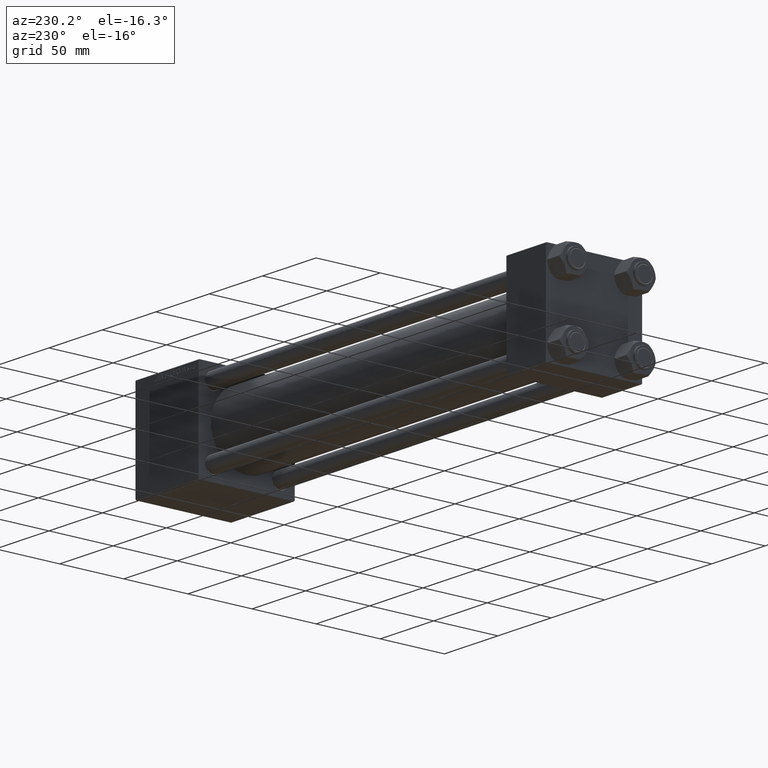
[diagram: clean part render]
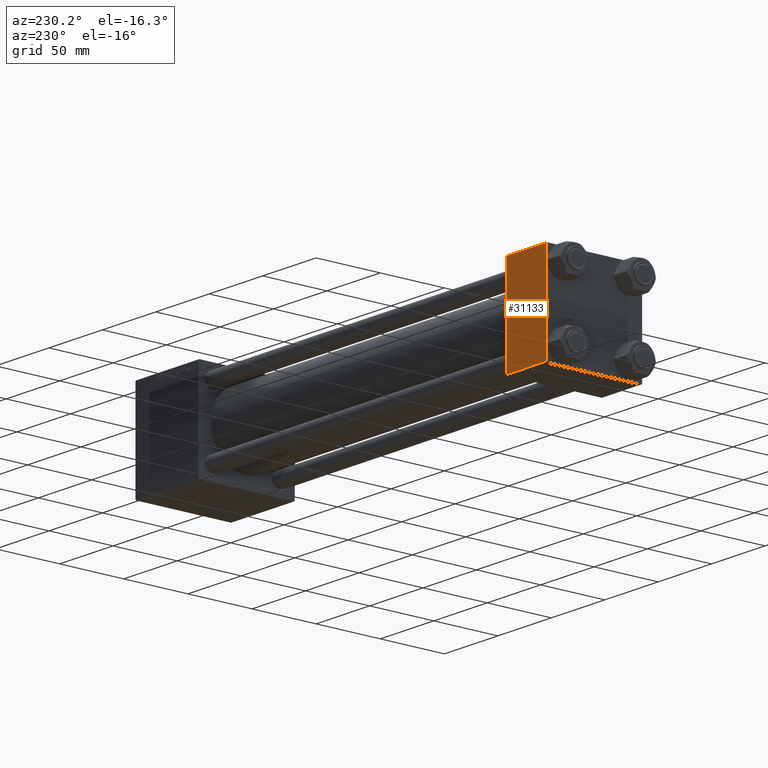
[diagram: same view with one face highlighted and labeled with its STEP entity id]
A machine part, auxiliary view. The second image highlights one B-rep face of the part: STEP entity #31133.
In plain terms, the highlighted planar face has unit normal (0, 1, 0).
Its self-contained STEP definition (entity closure, byte-faithful):
#1032 = EDGE_CURVE ( 'NONE', #42253, #47338, #5940, .T. ) ;
#2652 = CARTESIAN_POINT ( 'NONE',  ( 37.00000000000000000, 37.49999999999999289, -36.99999999999998579 ) ) ;
#3203 = CARTESIAN_POINT ( 'NONE',  ( 37.00000000000000000, 37.49999999999999289, -36.99999999999998579 ) ) ;
#4152 = EDGE_CURVE ( 'NONE', #42253, #4181, #13970, .T. ) ;
#4181 = VERTEX_POINT ( 'NONE', #39872 ) ;
#4626 = DIRECTION ( 'NONE',  ( 0.000000000000000000, -0.000000000000000000, 1.000000000000000000 ) ) ;
#4848 = AXIS2_PLACEMENT_3D ( 'NONE', #39383, #43693, #4626 ) ;
#4860 = EDGE_CURVE ( 'NONE', #26440, #4181, #25512, .T. ) ;
#5940 = LINE ( 'NONE', #43748, #42527 ) ;
#8994 = DIRECTION ( 'NONE',  ( 1.000000000000000000, 0.000000000000000000, 0.000000000000000000 ) ) ;
#11070 = ORIENTED_EDGE ( 'NONE', *, *, #34684, .T. ) ;
#13970 = LINE ( 'NONE', #21108, #24004 ) ;
#17444 = VECTOR ( 'NONE', #25272, 1000.000000000000000 ) ;
#18288 = CARTESIAN_POINT ( 'NONE',  ( 37.00000000000000000, 37.49999999999999289, 37.00000000000000000 ) ) ;
#21108 = CARTESIAN_POINT ( 'NONE',  ( 0.000000000000000000, 37.49999999999999289, 37.50000000000000000 ) ) ;
#23904 = PLANE ( 'NONE',  #4848 ) ;
#24004 = VECTOR ( 'NONE', #36585, 1000.000000000000000 ) ;
#25272 = DIRECTION ( 'NONE',  ( -1.000000000000000000, 0.000000000000000000, 0.000000000000000000 ) ) ;
#25512 = LINE ( 'NONE', #2652, #17444 ) ;
#25855 = LINE ( 'NONE', #29904, #35747 ) ;
#26440 = VERTEX_POINT ( 'NONE', #3203 ) ;
#29781 = ORIENTED_EDGE ( 'NONE', *, *, #1032, .T. ) ;
#29904 = CARTESIAN_POINT ( 'NONE',  ( 37.00000000000000000, 37.49999999999999289, 37.50000000000000000 ) ) ;
#31133 = ADVANCED_FACE ( 'NONE', ( #43183 ), #23904, .T. ) ;
#32205 = EDGE_LOOP ( 'NONE', ( #11070, #33324, #43105, #29781 ) ) ;
#33324 = ORIENTED_EDGE ( 'NONE', *, *, #4860, .T. ) ;
#34684 = EDGE_CURVE ( 'NONE', #47338, #26440, #25855, .T. ) ;
#35747 = VECTOR ( 'NONE', #41326, 1000.000000000000000 ) ;
#36585 = DIRECTION ( 'NONE',  ( 0.000000000000000000, 0.000000000000000000, -1.000000000000000000 ) ) ;
#39383 = CARTESIAN_POINT ( 'NONE',  ( 37.00000000000000000, 37.49999999999999289, 37.50000000000000000 ) ) ;
#39538 = CARTESIAN_POINT ( 'NONE',  ( 0.000000000000000000, 37.49999999999999289, 37.00000000000000000 ) ) ;
#39872 = CARTESIAN_POINT ( 'NONE',  ( 0.000000000000000000, 37.49999999999999289, -36.99999999999998579 ) ) ;
#41326 = DIRECTION ( 'NONE',  ( 0.000000000000000000, 0.000000000000000000, -1.000000000000000000 ) ) ;
#42253 = VERTEX_POINT ( 'NONE', #39538 ) ;
#42527 = VECTOR ( 'NONE', #8994, 1000.000000000000000 ) ;
#43105 = ORIENTED_EDGE ( 'NONE', *, *, #4152, .F. ) ;
#43183 = FACE_OUTER_BOUND ( 'NONE', #32205, .T. ) ;
#43693 = DIRECTION ( 'NONE',  ( -0.000000000000000000, 1.000000000000000000, 0.000000000000000000 ) ) ;
#43748 = CARTESIAN_POINT ( 'NONE',  ( 37.00000000000000000, 37.49999999999999289, 37.00000000000000000 ) ) ;
#47338 = VERTEX_POINT ( 'NONE', #18288 ) ;